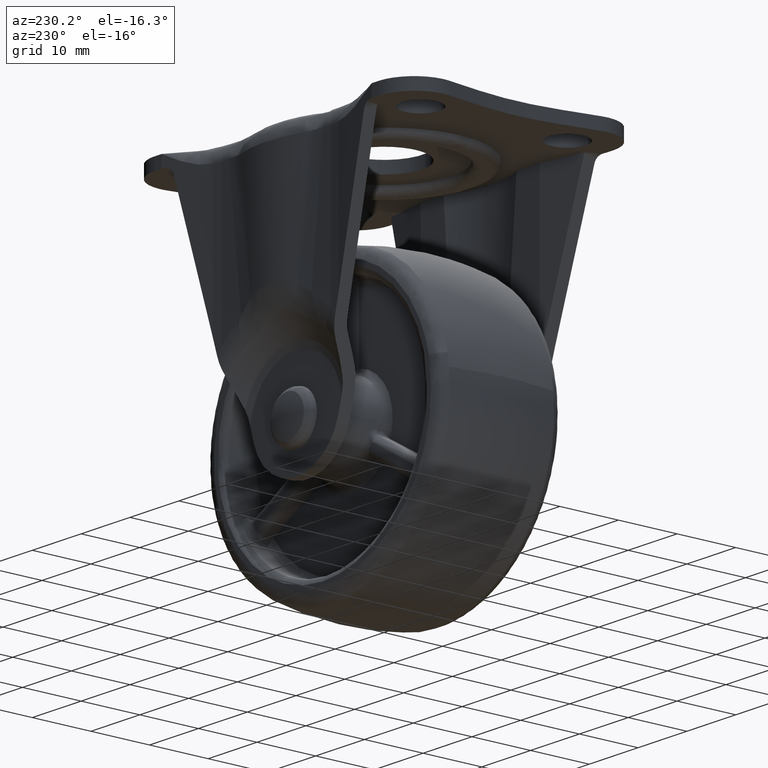
[diagram: clean part render]
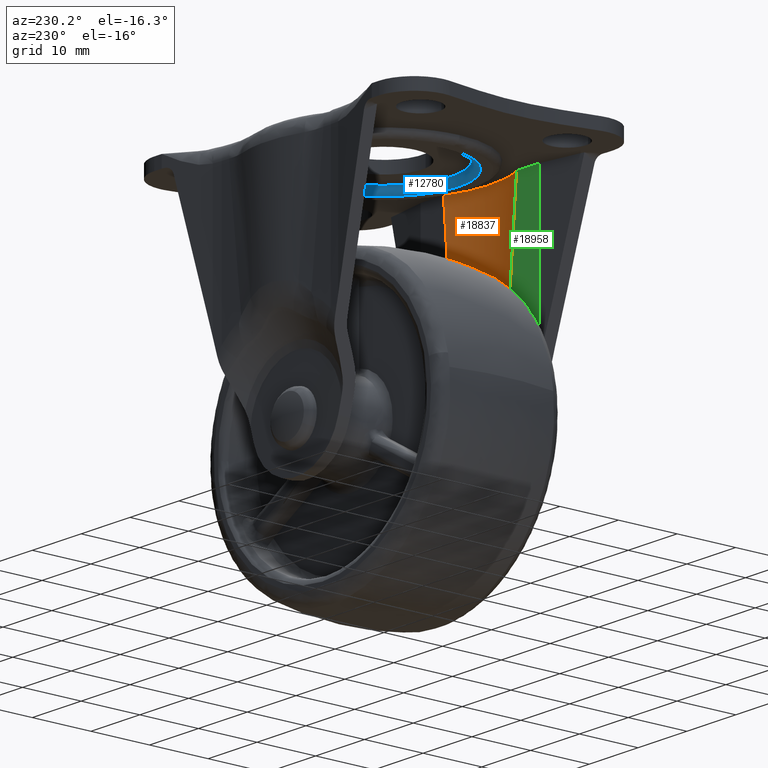
[diagram: same view with three faces highlighted in distinct colors, each labeled with its STEP entity id]
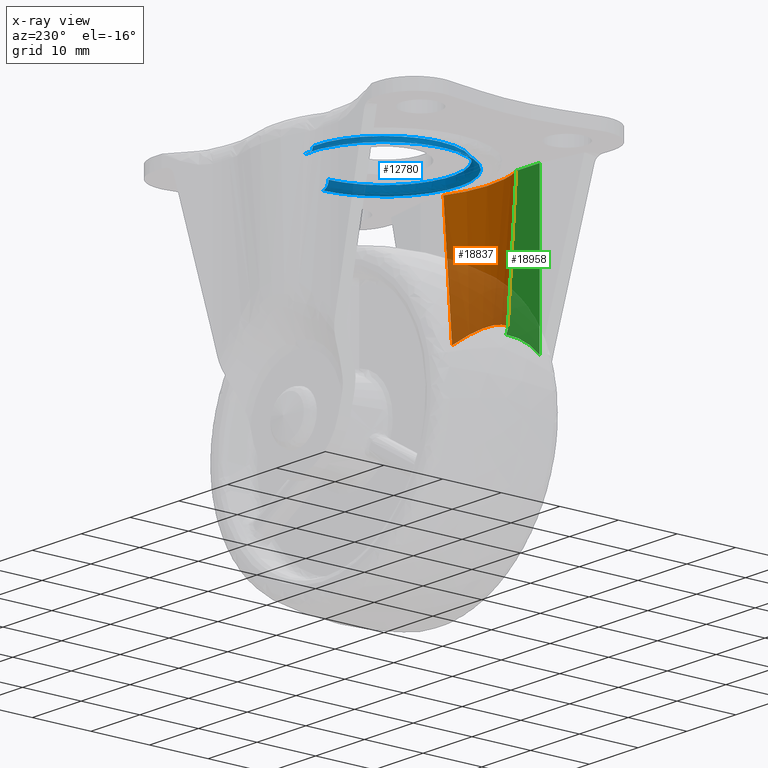
[diagram: x-ray of the same camera — body ghosted, the three highlighted faces saturated]
A machine part, auxiliary view with three faces highlighted in distinct colors.
The next image is the same camera in x-ray (body ghosted, the three faces saturated) — at least one of them is partly hidden behind the body in this view.
Their STEP definitions:

[orange] entity #18837 — the highlighted face is a freeform B-spline surface patch.
#16038=CARTESIAN_POINT('',(-5.738121968540730,-16.380500000000001,17.119365447406651));
#16039=VERTEX_POINT('',#16038);
#16055=CARTESIAN_POINT('',(5.738121968540741,-16.380500000000001,17.119365447406800));
#16056=VERTEX_POINT('',#16055);
#16057=CARTESIAN_POINT('',(5.738121968540710,-16.380500000000001,17.119365447406750));
#16058=CARTESIAN_POINT('',(5.304724944400372,-16.532615216852250,17.331948326242390));
#16059=CARTESIAN_POINT('',(4.858391006478970,-16.670117748380910,17.522822381882438));
#16060=CARTESIAN_POINT('',(4.282749245454451,-16.821432564690131,17.732063930857279));
#16061=CARTESIAN_POINT('',(4.166732087174504,-16.850664745392020,17.772440121974061));
#16062=CARTESIAN_POINT('',(3.932870083619986,-16.906998495535529,17.850173235093990));
#16063=CARTESIAN_POINT('',(3.814913726133847,-16.934122593641181,17.887561132953952));
#16064=CARTESIAN_POINT('',(3.459669045266624,-17.011881014239538,17.994648710292442));
#16065=CARTESIAN_POINT('',(3.220680405954938,-17.058991413799749,18.059397604024440));
#16066=CARTESIAN_POINT('',(2.497073017422500,-17.185672154073430,18.233283859623711));
#16067=CARTESIAN_POINT('',(2.005833206982961,-17.250630980319560,18.322127792202942));
#16068=CARTESIAN_POINT('',(1.379917617660027,-17.305406946737691,18.396986706232919));
#16069=CARTESIAN_POINT('',(1.254395547534655,-17.315012293864122,18.410108350236879));
#16070=CARTESIAN_POINT('',(1.003540430439193,-17.331453681735429,18.432563453039201));
#16071=CARTESIAN_POINT('',(0.878075947414608,-17.338301509862699,18.441913019190451));
#16072=CARTESIAN_POINT('',(0.501571995349141,-17.354732809679032,18.464344182513550));
#16073=CARTESIAN_POINT('',(-0.000727826321434,-17.365678983710200,18.479279227659521));
#16074=CARTESIAN_POINT('',(-0.503616842320568,-17.354681880498401,18.464274694543111));
#16075=CARTESIAN_POINT('',(-1.006802496695672,-17.332644940155831,18.434190923555740));
#16076=CARTESIAN_POINT('',(-1.259097269986558,-17.316031191279130,18.411506404575810));
#16077=CARTESIAN_POINT('',(-2.007622555379002,-17.250371605642311,18.321772911342912));
#16078=CARTESIAN_POINT('',(-2.498008869680712,-17.185531852970499,18.233091656273359));
#16079=CARTESIAN_POINT('',(-3.221424857310009,-17.058849285835361,18.059202324574692));
#16080=CARTESIAN_POINT('',(-3.460531917933844,-17.011708970439191,17.994412201567851));
#16081=CARTESIAN_POINT('',(-3.934766043887028,-16.907871577163331,17.851408249369189));
#16082=CARTESIAN_POINT('',(-4.168466027902349,-16.851482813887401,17.773618444144351));
#16083=CARTESIAN_POINT('',(-4.858638715894821,-16.670033714141059,17.522705477343049));
#16084=CARTESIAN_POINT('',(-5.304772608520779,-16.532598487531089,17.331924946811110));
#16085=CARTESIAN_POINT('',(-5.738121968540750,-16.380500000000001,17.119365447406700));
#16086=B_SPLINE_CURVE_WITH_KNOTS('',3,(#16057,#16058,#16059,#16060,#16061,#16062,#16063,#16064,#16065,#16066,#16067,#16068,#16069,#16070,#16071,#16072,#16073,#16074,#16075,#16076,#16077,#16078,#16079,#16080,#16081,#16082,#16083,#16084,#16085),.UNSPECIFIED.,.F.,.U.,(4,2,2,2,2,2,2,2,1,2,2,2,2,2,4),(0.0,0.125000000000000,0.156249999999999,0.187499999999999,0.249999999999999,0.374999999999999,0.406249999999999,0.437499999999999,0.500000000000000,0.562500000000000,0.625000000000000,0.750000000000000,0.812500000000000,0.875000000000000,1.0),.UNSPECIFIED.);
#16087=EDGE_CURVE('',#16056,#16039,#16086,.T.);
#18777=CARTESIAN_POINT('',(-7.942486680194704,-16.181208476431632,38.583084138410229));
#18778=CARTESIAN_POINT('',(-7.942486680194704,-15.460072846084630,16.613147885576939));
#18779=CARTESIAN_POINT('',(0.131896742020273,-20.127872790373157,38.453539827263889));
#18780=CARTESIAN_POINT('',(0.131896742020273,-19.406737160026150,16.483603574430600));
#18781=CARTESIAN_POINT('',(8.153998472810246,-16.076107130026472,38.586533958419615));
#18782=CARTESIAN_POINT('',(8.153998472810246,-15.354971499679468,16.616597705586322));
#18790=(BOUNDED_SURFACE()B_SPLINE_SURFACE(1,2,((#18777,#18779,#18781),(#18778,#18780,#18782)),.UNSPECIFIED.,.F.,.F.,.U.)B_SPLINE_SURFACE_WITH_KNOTS((2,2),(3,3),(0.0,21.981768253507600),(0.0,16.984731028176270),.UNSPECIFIED.)GEOMETRIC_REPRESENTATION_ITEM()RATIONAL_B_SPLINE_SURFACE(((1.0,0.891537782122165,0.991308849573972),(1.0,0.891537782122165,0.991308849573972)))REPRESENTATION_ITEM('')SURFACE());
#18791=CARTESIAN_POINT('',(7.479596978386980,-16.380500000000001,38.0));
#18792=VERTEX_POINT('',#18791);
#18793=CARTESIAN_POINT('',(7.479596978386980,-16.380500000000001,38.0));
#18794=CARTESIAN_POINT('',(6.626609930286683,-16.380500000000001,26.184138902221047));
#18795=CARTESIAN_POINT('',(5.738121968540731,-16.380500000000001,17.119365447406778));
#18803=(BOUNDED_CURVE()B_SPLINE_CURVE(2,(#18793,#18794,#18795),.UNSPECIFIED.,.F.,.U.)CURVE()GEOMETRIC_REPRESENTATION_ITEM()QUASI_UNIFORM_CURVE()RATIONAL_B_SPLINE_CURVE((1.0,0.998659770242061,1.0))REPRESENTATION_ITEM(''));
#18804=EDGE_CURVE('',#18792,#16056,#18803,.T.);
#18805=ORIENTED_EDGE('',*,*,#18804,.T.);
#18806=ORIENTED_EDGE('',*,*,#16087,.T.);
#18807=CARTESIAN_POINT('',(-7.479596978386980,-16.380500000000001,38.0));
#18808=VERTEX_POINT('',#18807);
#18809=CARTESIAN_POINT('',(-5.738121968540730,-16.380500000000001,17.119365447406651));
#18810=CARTESIAN_POINT('',(-6.626609930286713,-16.380499999999994,26.184138902221374));
#18811=CARTESIAN_POINT('',(-7.479596978386980,-16.380500000000001,38.0));
#18819=(BOUNDED_CURVE()B_SPLINE_CURVE(2,(#18809,#18810,#18811),.UNSPECIFIED.,.F.,.U.)CURVE()GEOMETRIC_REPRESENTATION_ITEM()QUASI_UNIFORM_CURVE()RATIONAL_B_SPLINE_CURVE((1.0,0.998659770242139,1.0))REPRESENTATION_ITEM(''));
#18820=EDGE_CURVE('',#16039,#18808,#18819,.T.);
#18821=ORIENTED_EDGE('',*,*,#18820,.T.);
#18822=CARTESIAN_POINT('',(7.479596978386980,-16.380500000000001,38.0));
#18823=CARTESIAN_POINT('',(1.942890E-013,-19.781364234350786,37.999999999999993));
#18824=CARTESIAN_POINT('',(-7.479596978386980,-16.380500000000001,38.0));
#18832=(BOUNDED_CURVE()B_SPLINE_CURVE(2,(#18822,#18823,#18824),.UNSPECIFIED.,.F.,.U.)CURVE()GEOMETRIC_REPRESENTATION_ITEM()QUASI_UNIFORM_CURVE()RATIONAL_B_SPLINE_CURVE((1.0,0.910402383024011,1.0))REPRESENTATION_ITEM(''));
#18833=EDGE_CURVE('',#18792,#18808,#18832,.T.);
#18834=ORIENTED_EDGE('',*,*,#18833,.F.);
#18835=EDGE_LOOP('',(#18805,#18806,#18821,#18834));
#18836=FACE_OUTER_BOUND('',#18835,.T.);
#18837=ADVANCED_FACE('',(#18836),#18790,.F.);

[blue] entity #12780 — the highlighted face is a freeform B-spline surface patch.
#12645=CARTESIAN_POINT('',(0.802134318339970,11.474902984527395,38.083444542737411));
#12646=CARTESIAN_POINT('',(0.473727841780459,11.497859701945290,38.083444542737396));
#12647=CARTESIAN_POINT('',(0.144545960016612,11.501996541227850,38.083444542737404));
#12648=CARTESIAN_POINT('',(-11.357450581211234,11.646542501244459,38.083444542737389));
#12649=CARTESIAN_POINT('',(-11.501996541227850,0.144545960016613,38.083444542737404));
#12650=CARTESIAN_POINT('',(-11.646542501244459,-11.357450581211234,38.083444542737389));
#12651=CARTESIAN_POINT('',(-0.144545960016614,-11.501996541227850,38.083444542737404));
#12652=CARTESIAN_POINT('',(11.357450581211234,-11.646542501244459,38.083444542737389));
#12653=CARTESIAN_POINT('',(11.501996541227850,-0.144545960016614,38.083444542737404));
#12654=CARTESIAN_POINT('',(0.795443462179051,11.379187187840305,36.706955102195337));
#12655=CARTESIAN_POINT('',(0.469776327955025,11.401952416014241,36.706955102195344));
#12656=CARTESIAN_POINT('',(0.143340256426826,11.406054748611362,36.706955102195352));
#12657=CARTESIAN_POINT('',(-11.262714492184536,11.549395005038191,36.706955102195352));
#12658=CARTESIAN_POINT('',(-11.406054748611362,0.143340256426827,36.706955102195352));
#12659=CARTESIAN_POINT('',(-11.549395005038196,-11.262714492184536,36.706955102195352));
#12660=CARTESIAN_POINT('',(-0.143340256426828,-11.406054748611362,36.706955102195352));
#12661=CARTESIAN_POINT('',(11.262714492184536,-11.549395005038196,36.706955102195352));
#12662=CARTESIAN_POINT('',(11.406054748611362,-0.143340256426828,36.706955102195352));
#12663=CARTESIAN_POINT('',(0.891430469335401,12.752325787836497,36.802904781053684));
#12664=CARTESIAN_POINT('',(0.526464736242116,12.777838120265539,36.802904781053684));
#12665=CARTESIAN_POINT('',(0.160637277363731,12.782435485692879,36.802904781053698));
#12666=CARTESIAN_POINT('',(-12.621798208329146,12.943072763056607,36.802904781053691));
#12667=CARTESIAN_POINT('',(-12.782435485692879,0.160637277363732,36.802904781053698));
#12668=CARTESIAN_POINT('',(-12.943072763056607,-12.621798208329144,36.802904781053691));
#12669=CARTESIAN_POINT('',(-0.160637277363732,-12.782435485692879,36.802904781053698));
#12670=CARTESIAN_POINT('',(12.621798208329144,-12.943072763056607,36.802904781053691));
#12671=CARTESIAN_POINT('',(12.782435485692879,-0.160637277363733,36.802904781053698));
#12679=(BOUNDED_SURFACE()B_SPLINE_SURFACE(2,2,((#12645,#12654,#12663),(#12646,#12655,#12664),(#12647,#12656,#12665),(#12648,#12657,#12666),(#12649,#12658,#12667),(#12650,#12659,#12668),(#12651,#12660,#12669),(#12652,#12661,#12670),(#12653,#12662,#12671)),.UNSPECIFIED.,.F.,.F.,.U.)B_SPLINE_SURFACE_WITH_KNOTS((3,2,2,2,3),(3,3),(0.0,0.847211386482136,22.027516247648311,43.207821108814478,64.388125969980649),(0.0,2.186849049365753),.UNSPECIFIED.)GEOMETRIC_REPRESENTATION_ITEM()RATIONAL_B_SPLINE_SURFACE(((0.889999303923509,0.584039716581426,0.889999395383746),(0.899812874991286,0.590479626410353,0.899812967460008),(0.910479799180367,0.597479527817829,0.910479892745269),(0.643806440133804,0.422481825740123,0.643806506294180),(0.910479799180367,0.597479527817829,0.910479892745269),(0.643806440133804,0.422481825740123,0.643806506294180),(0.910479799180367,0.597479527817829,0.910479892745269),(0.643806440133804,0.422481825740123,0.643806506294180),(0.910479799180367,0.597479527817829,0.910479892745269)))REPRESENTATION_ITEM('')SURFACE());
#12680=CARTESIAN_POINT('',(0.885612294983963,12.669084057585369,36.799999999999997));
#12681=VERTEX_POINT('',#12680);
#12682=CARTESIAN_POINT('',(-12.699999999999999,0.0,36.799999999999997));
#12683=VERTEX_POINT('',#12682);
#12684=CARTESIAN_POINT('',(0.885612294983963,12.669084057585373,36.799999999999997));
#12685=CARTESIAN_POINT('',(0.443345771597850,12.699999999999996,36.799999999999997));
#12686=CARTESIAN_POINT('',(0.0,12.699999999999999,36.799999999999997));
#12687=CARTESIAN_POINT('',(-12.699999999999999,12.699999999999999,36.799999999999990));
#12688=CARTESIAN_POINT('',(-12.699999999999999,0.0,36.799999999999997));
#12696=(BOUNDED_CURVE()B_SPLINE_CURVE(2,(#12684,#12685,#12686,#12687,#12688),.UNSPECIFIED.,.F.,.U.)B_SPLINE_CURVE_WITH_KNOTS((3,2,3),(0.237833686535432,0.250000000000000,0.500000000000000),.UNSPECIFIED.)CURVE()GEOMETRIC_REPRESENTATION_ITEM()RATIONAL_B_SPLINE_CURVE((0.972879876387695,0.985746277153077,1.0,0.707106781186547,1.0))REPRESENTATION_ITEM(''));
#12697=EDGE_CURVE('',#12681,#12683,#12696,.T.);
#12698=ORIENTED_EDGE('',*,*,#12697,.F.);
#12699=CARTESIAN_POINT('',(0.801932393208766,11.472005249158601,37.999999998718963));
#12700=VERTEX_POINT('',#12699);
#12701=CARTESIAN_POINT('',(0.801932393208766,11.472005249158599,37.999999998718963));
#12702=CARTESIAN_POINT('',(0.801932393296247,11.472005251720814,36.800000000378681));
#12703=CARTESIAN_POINT('',(0.885612294983963,12.669084057585371,36.799999999999997));
#12711=(BOUNDED_CURVE()B_SPLINE_CURVE(2,(#12701,#12702,#12703),.UNSPECIFIED.,.F.,.U.)B_SPLINE_CURVE_WITH_KNOTS((3,3),(-1.725134641092313,-0.274865357041802),.UNSPECIFIED.)CURVE()GEOMETRIC_REPRESENTATION_ITEM()RATIONAL_B_SPLINE_CURVE((0.863472074609070,0.610566960299510,0.863472075259835))REPRESENTATION_ITEM(''));
#12712=EDGE_CURVE('',#12700,#12681,#12711,.T.);
#12713=ORIENTED_EDGE('',*,*,#12712,.F.);
#12714=CARTESIAN_POINT('',(-11.500000000000000,0.0,38.0));
#12715=VERTEX_POINT('',#12714);
#12716=CARTESIAN_POINT('',(0.801932393208766,11.472005249158597,37.999999998718970));
#12717=CARTESIAN_POINT('',(0.401454832650699,11.499999999999998,38.0));
#12718=CARTESIAN_POINT('',(0.0,11.500000000000000,38.0));
#12719=CARTESIAN_POINT('',(-11.500000000000000,11.500000000000000,38.0));
#12720=CARTESIAN_POINT('',(-11.500000000000000,0.0,38.0));
#12728=(BOUNDED_CURVE()B_SPLINE_CURVE(2,(#12716,#12717,#12718,#12719,#12720),.UNSPECIFIED.,.F.,.U.)B_SPLINE_CURVE_WITH_KNOTS((3,2,3),(0.237833686532401,0.250000000000000,0.500000000000000),.UNSPECIFIED.)CURVE()GEOMETRIC_REPRESENTATION_ITEM()RATIONAL_B_SPLINE_CURVE((0.972879876381284,0.985746277149525,1.0,0.707106781186548,1.0))REPRESENTATION_ITEM(''));
#12729=EDGE_CURVE('',#12700,#12715,#12728,.T.);
#12730=ORIENTED_EDGE('',*,*,#12729,.T.);
#12731=CARTESIAN_POINT('',(11.499092008343769,-0.144509458667610,37.999999998772907));
#12732=VERTEX_POINT('',#12731);
#12733=CARTESIAN_POINT('',(-11.500000000000000,0.0,38.0));
#12734=CARTESIAN_POINT('',(-11.500000000000000,-11.500000000000000,38.0));
#12735=CARTESIAN_POINT('',(0.0,-11.500000000000000,38.0));
#12736=CARTESIAN_POINT('',(11.356387193916193,-11.499999999999998,38.0));
#12737=CARTESIAN_POINT('',(11.499092008343771,-0.144509458667610,37.999999998772907));
#12745=(BOUNDED_CURVE()B_SPLINE_CURVE(2,(#12733,#12734,#12735,#12736,#12737),.UNSPECIFIED.,.F.,.U.)B_SPLINE_CURVE_WITH_KNOTS((3,2,3),(0.500000000000000,0.750000000000000,0.997784295921451),.UNSPECIFIED.)CURVE()GEOMETRIC_REPRESENTATION_ITEM()RATIONAL_B_SPLINE_CURVE((1.0,0.707106781186548,1.0,0.709702639984565,0.994854295643374))REPRESENTATION_ITEM(''));
#12746=EDGE_CURVE('',#12715,#12732,#12745,.T.);
#12747=ORIENTED_EDGE('',*,*,#12746,.T.);
#12748=CARTESIAN_POINT('',(12.698997261364971,-0.159588706559361,36.799999999999997));
#12749=VERTEX_POINT('',#12748);
#12750=CARTESIAN_POINT('',(11.499092008343771,-0.144509458667610,37.999999998772907));
#12751=CARTESIAN_POINT('',(11.499092010797890,-0.144509458689395,36.800000000045955));
#12752=CARTESIAN_POINT('',(12.698997261364971,-0.159588706559361,36.800000000000004));
#12760=(BOUNDED_CURVE()B_SPLINE_CURVE(2,(#12750,#12751,#12752),.UNSPECIFIED.,.F.,.U.)B_SPLINE_CURVE_WITH_KNOTS((3,3),(-1.725134641184503,-0.274865356757457),.UNSPECIFIED.)CURVE()GEOMETRIC_REPRESENTATION_ITEM()RATIONAL_B_SPLINE_CURVE((0.883342148904748,0.624617224508742,0.883342149639048))REPRESENTATION_ITEM(''));
#12761=EDGE_CURVE('',#12732,#12749,#12760,.T.);
#12762=ORIENTED_EDGE('',*,*,#12761,.T.);
#12763=CARTESIAN_POINT('',(-12.699999999999999,0.0,36.799999999999997));
#12764=CARTESIAN_POINT('',(-12.699999999999999,-12.699999999999999,36.799999999999990));
#12765=CARTESIAN_POINT('',(0.0,-12.699999999999999,36.799999999999997));
#12766=CARTESIAN_POINT('',(12.541401509741815,-12.699999999999999,36.799999999999997));
#12767=CARTESIAN_POINT('',(12.698997261364967,-0.159588706559361,36.800000000000004));
#12775=(BOUNDED_CURVE()B_SPLINE_CURVE(2,(#12763,#12764,#12765,#12766,#12767),.UNSPECIFIED.,.F.,.U.)B_SPLINE_CURVE_WITH_KNOTS((3,2,3),(0.500000000000000,0.750000000000000,0.997784295920591),.UNSPECIFIED.)CURVE()GEOMETRIC_REPRESENTATION_ITEM()RATIONAL_B_SPLINE_CURVE((1.0,0.707106781186547,1.0,0.709702639985572,0.994854295641396))REPRESENTATION_ITEM(''));
#12776=EDGE_CURVE('',#12683,#12749,#12775,.T.);
#12777=ORIENTED_EDGE('',*,*,#12776,.F.);
#12778=EDGE_LOOP('',(#12698,#12713,#12730,#12747,#12762,#12777));
#12779=FACE_OUTER_BOUND('',#12778,.T.);
#12780=ADVANCED_FACE('',(#12779),#12679,.T.);

[green] entity #18958 — the highlighted face is a freeform B-spline surface patch.
#16038=CARTESIAN_POINT('',(-5.738121968540730,-16.380500000000001,17.119365447406651));
#16039=VERTEX_POINT('',#16038);
#16040=CARTESIAN_POINT('',(-5.342079518235920,-16.380500000000001,16.102407970349599));
#16041=VERTEX_POINT('',#16040);
#16042=CARTESIAN_POINT('',(-5.738121968540750,-16.380500000000001,17.119365447406700));
#16043=CARTESIAN_POINT('',(-5.720021359972692,-16.380500000000001,16.934694497289041));
#16044=CARTESIAN_POINT('',(-5.680652883464648,-16.380500000000001,16.755425702750209));
#16045=CARTESIAN_POINT('',(-5.598828651273255,-16.380500000000001,16.539623752865371));
#16046=CARTESIAN_POINT('',(-5.580731185720626,-16.380500000000001,16.496724798660338));
#16047=CARTESIAN_POINT('',(-5.541428585850439,-16.380499999999991,16.412772268476690));
#16048=CARTESIAN_POINT('',(-5.520243500692951,-16.380500000000001,16.371722193708759));
#16049=CARTESIAN_POINT('',(-5.452016621367674,-16.380500000000001,16.251392972467290));
#16050=CARTESIAN_POINT('',(-5.400313371096705,-16.380500000000001,16.174928689166180));
#16051=CARTESIAN_POINT('',(-5.342079518235920,-16.380500000000001,16.102407970349599));
#16052=B_SPLINE_CURVE_WITH_KNOTS('',3,(#16042,#16043,#16044,#16045,#16046,#16047,#16048,#16049,#16050,#16051),.UNSPECIFIED.,.F.,.U.,(4,2,2,2,4),(0.0,0.500000000000000,0.625000000000003,0.750000000000005,1.0),.UNSPECIFIED.);
#16053=EDGE_CURVE('',#16039,#16041,#16052,.T.);
#17233=CARTESIAN_POINT('',(-12.169252814956680,-16.380500000000001,11.820940823318640));
#17234=VERTEX_POINT('',#17233);
#17235=CARTESIAN_POINT('',(-5.342079518235908,-16.380500000000001,16.102407970349571));
#17236=CARTESIAN_POINT('',(-9.279068971771746,-16.380499999999998,14.796285882151848));
#17237=CARTESIAN_POINT('',(-12.169252814956691,-16.380500000000001,11.820940823318660));
#17245=(BOUNDED_CURVE()B_SPLINE_CURVE(2,(#17235,#17236,#17237),.UNSPECIFIED.,.F.,.U.)CURVE()GEOMETRIC_REPRESENTATION_ITEM()QUASI_UNIFORM_CURVE()RATIONAL_B_SPLINE_CURVE((1.0,0.971387243358852,1.0))REPRESENTATION_ITEM(''));
#17246=EDGE_CURVE('',#16041,#17234,#17245,.T.);
#18807=CARTESIAN_POINT('',(-7.479596978386980,-16.380500000000001,38.0));
#18808=VERTEX_POINT('',#18807);
#18809=CARTESIAN_POINT('',(-5.738121968540730,-16.380500000000001,17.119365447406651));
#18810=CARTESIAN_POINT('',(-6.626609930286713,-16.380499999999994,26.184138902221374));
#18811=CARTESIAN_POINT('',(-7.479596978386980,-16.380500000000001,38.0));
#18819=(BOUNDED_CURVE()B_SPLINE_CURVE(2,(#18809,#18810,#18811),.UNSPECIFIED.,.F.,.U.)CURVE()GEOMETRIC_REPRESENTATION_ITEM()QUASI_UNIFORM_CURVE()RATIONAL_B_SPLINE_CURVE((1.0,0.998659770242139,1.0))REPRESENTATION_ITEM(''));
#18820=EDGE_CURVE('',#16039,#18808,#18819,.T.);
#18869=CARTESIAN_POINT('',(-12.169252814956680,-16.380500000000001,38.0));
#18870=VERTEX_POINT('',#18869);
#18876=CARTESIAN_POINT('',(-12.169252814956680,-16.380500000000001,11.820940823318640));
#18877=CARTESIAN_POINT('',(-12.169252814956680,-16.380500000000001,38.0));
#18878=QUASI_UNIFORM_CURVE('',1,(#18876,#18877),.UNSPECIFIED.,.F.,.U.);
#18879=EDGE_CURVE('',#17234,#18870,#18878,.T.);
#18942=CARTESIAN_POINT('',(-12.510269634883709,-16.380500000000001,39.307643955135141));
#18943=CARTESIAN_POINT('',(-12.510269634883709,-16.380500000000001,10.513296166006420));
#18944=CARTESIAN_POINT('',(-5.001062576229518,-16.380500000000001,39.307643955135141));
#18945=CARTESIAN_POINT('',(-5.001062576229518,-16.380500000000001,10.513296166006420));
#18946=B_SPLINE_SURFACE_WITH_KNOTS('',1,1,((#18942,#18944),(#18943,#18945)),.UNSPECIFIED.,.F.,.F.,.U.,(2,2),(2,2),(0.0,28.794347789128729),(0.0,7.509207058654192),.UNSPECIFIED.);
#18947=ORIENTED_EDGE('',*,*,#18820,.F.);
#18948=ORIENTED_EDGE('',*,*,#16053,.T.);
#18949=ORIENTED_EDGE('',*,*,#17246,.T.);
#18950=ORIENTED_EDGE('',*,*,#18879,.T.);
#18951=CARTESIAN_POINT('',(-12.169252814956680,-16.380500000000001,38.0));
#18952=CARTESIAN_POINT('',(-7.479596978386980,-16.380500000000001,38.0));
#18953=QUASI_UNIFORM_CURVE('',1,(#18951,#18952),.UNSPECIFIED.,.F.,.U.);
#18954=EDGE_CURVE('',#18870,#18808,#18953,.T.);
#18955=ORIENTED_EDGE('',*,*,#18954,.T.);
#18956=EDGE_LOOP('',(#18947,#18948,#18949,#18950,#18955));
#18957=FACE_OUTER_BOUND('',#18956,.T.);
#18958=ADVANCED_FACE('',(#18957),#18946,.F.);